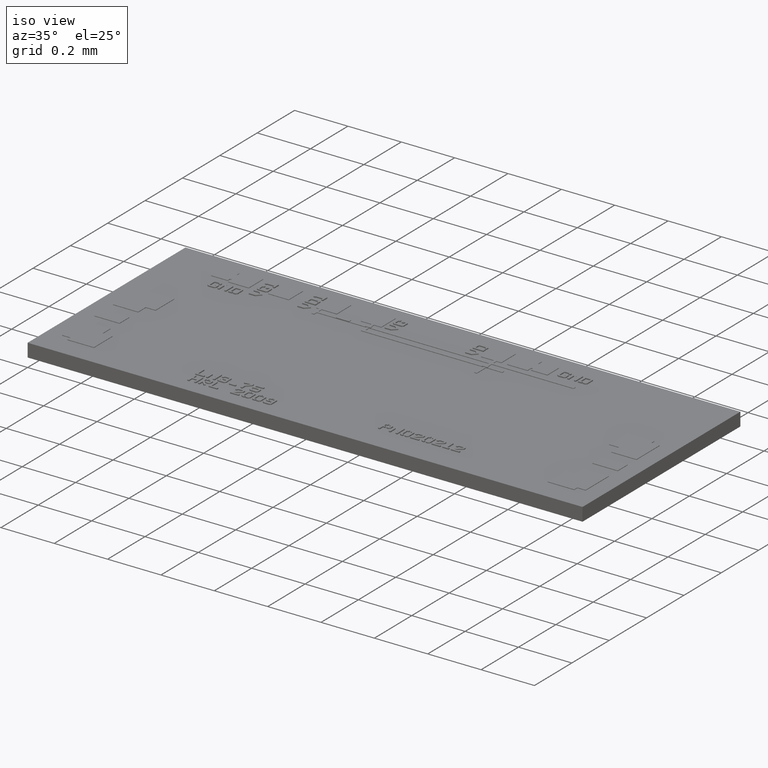
[diagram: clean part render]
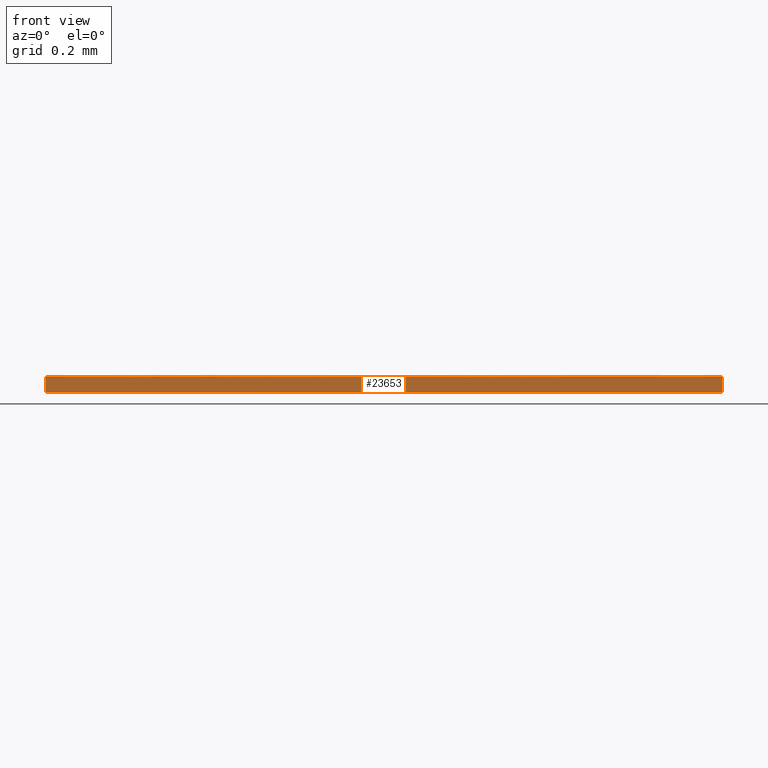
[diagram: tour spotlight — one face highlighted and labeled with its STEP entity id]
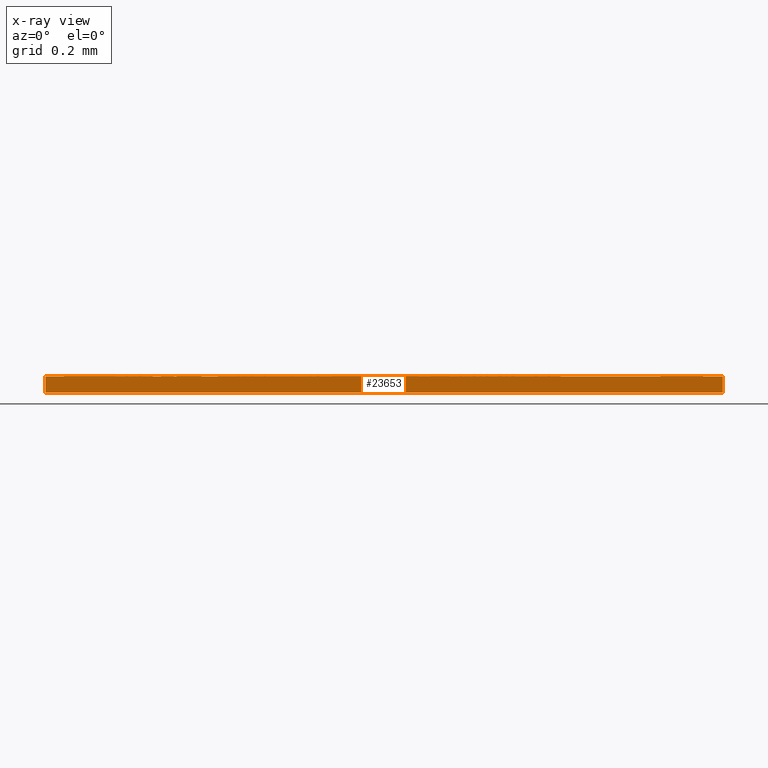
[diagram: x-ray of the same camera — body ghosted, this tour face saturated]
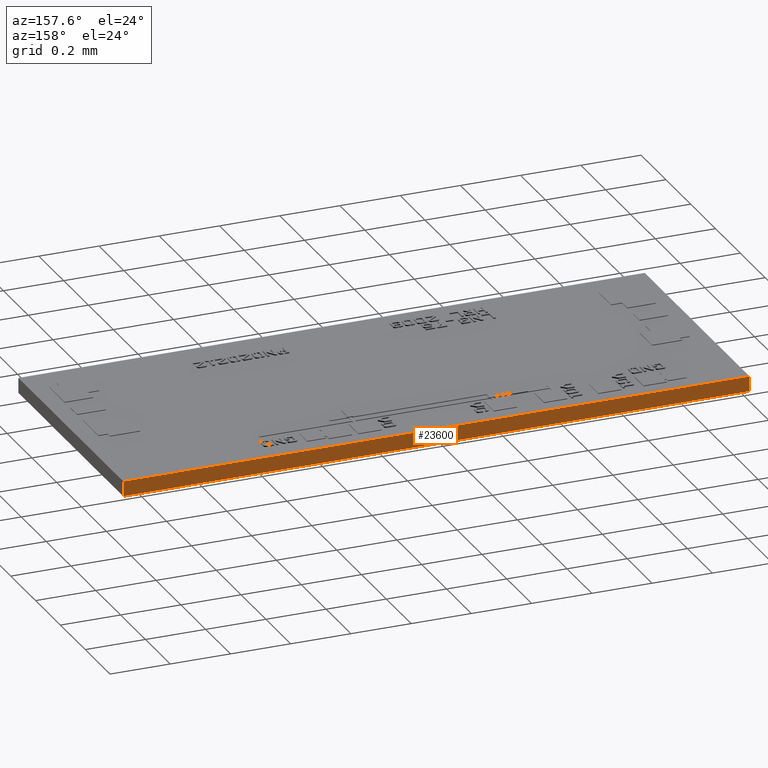
[diagram: tour spotlight — one face highlighted and labeled with its STEP entity id]
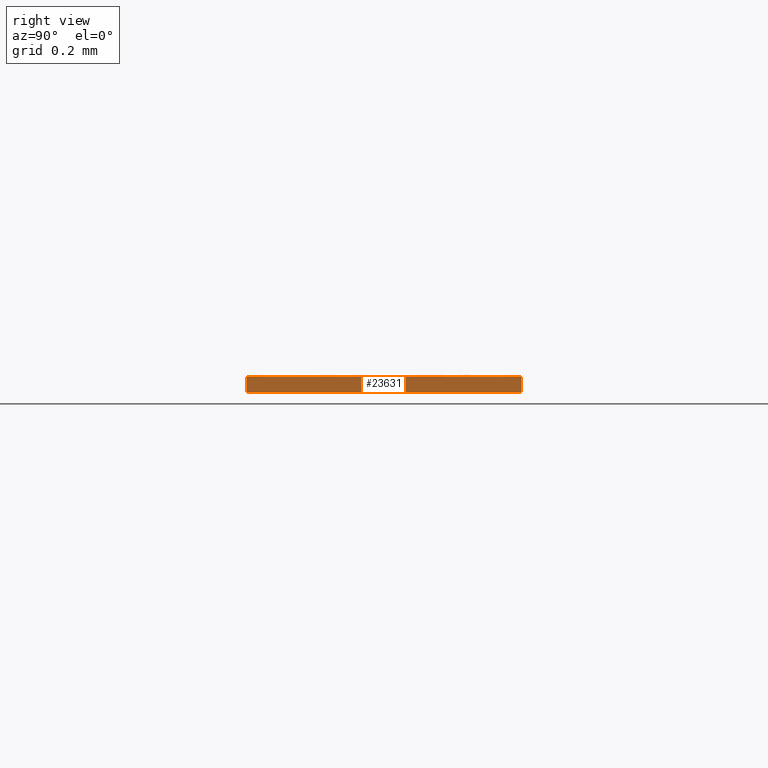
[diagram: tour spotlight — one face highlighted and labeled with its STEP entity id]
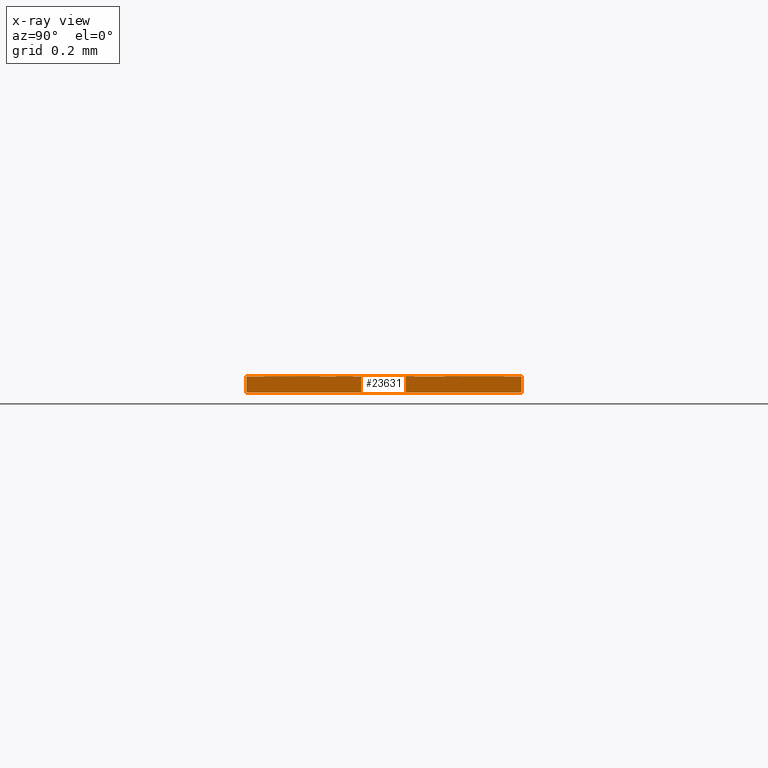
[diagram: x-ray of the same camera — body ghosted, this tour face saturated]
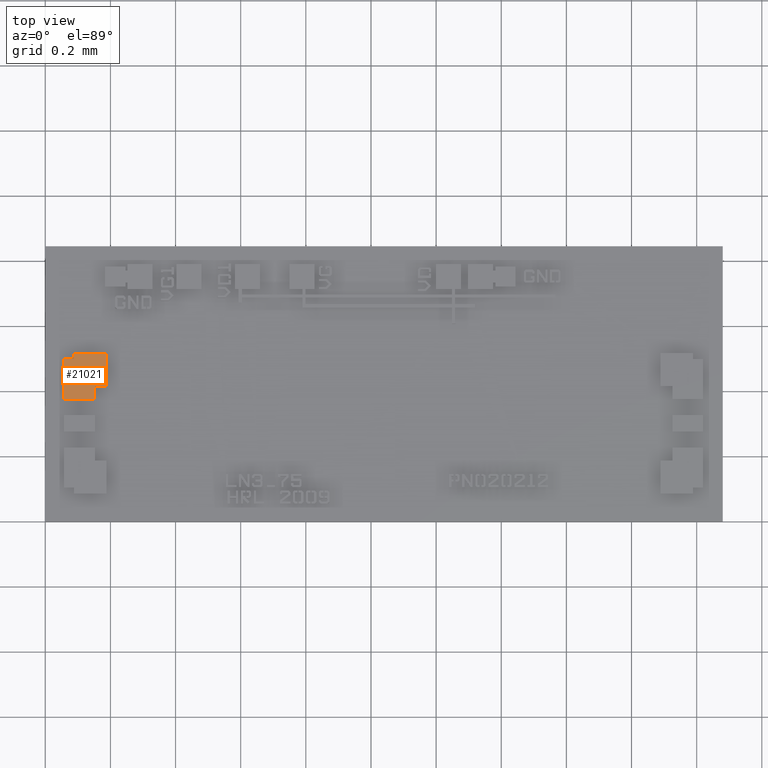
[diagram: tour spotlight — one face highlighted and labeled with its STEP entity id]
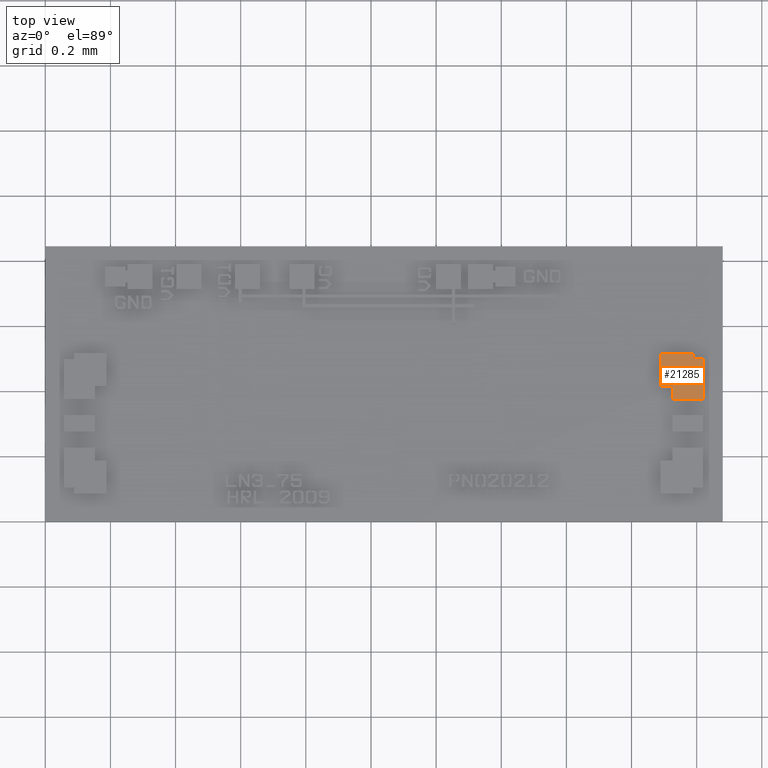
[diagram: tour spotlight — one face highlighted and labeled with its STEP entity id]
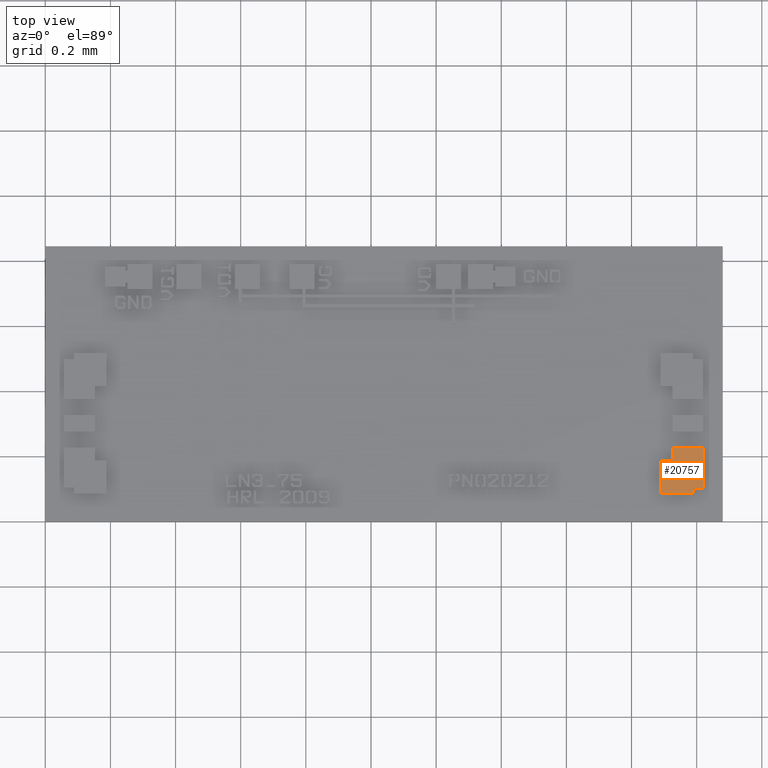
[diagram: tour spotlight — one face highlighted and labeled with its STEP entity id]
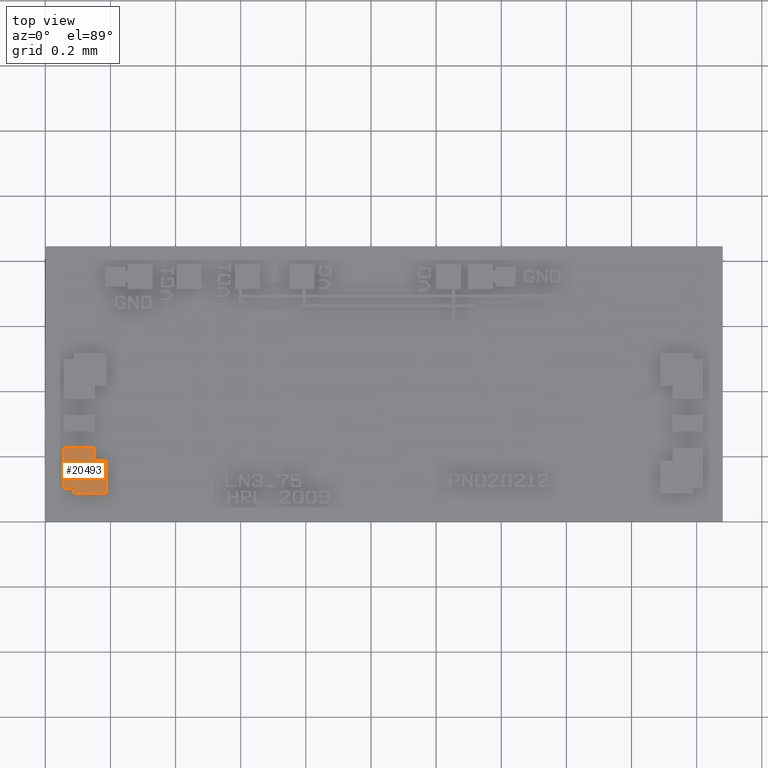
[diagram: tour spotlight — one face highlighted and labeled with its STEP entity id]
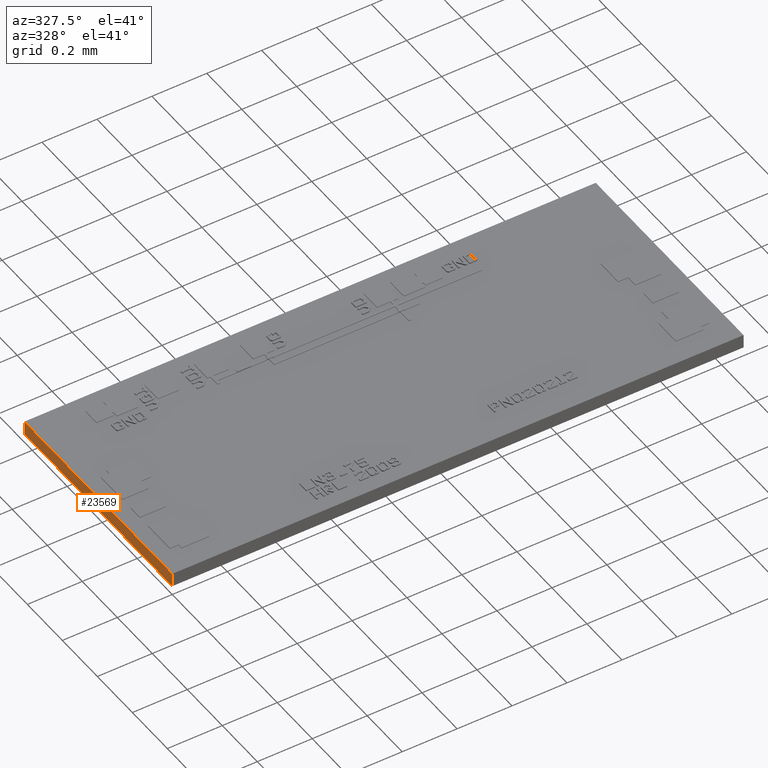
[diagram: tour spotlight — one face highlighted and labeled with its STEP entity id]
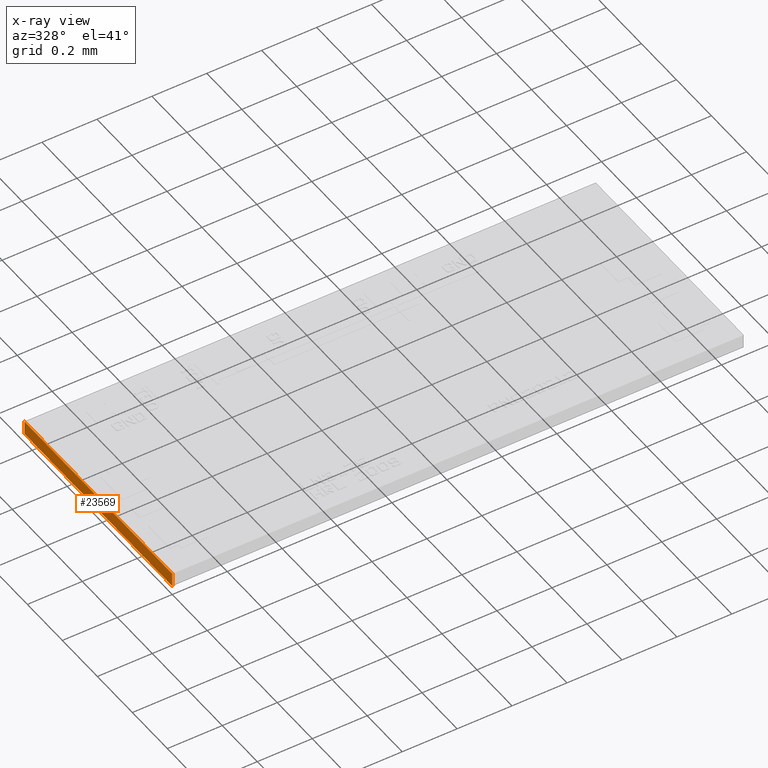
[diagram: x-ray of the same camera — body ghosted, this tour face saturated]
A machine part: a face-by-face anatomy tour. The part has 779 B-rep faces; the first image is the clean iso view, then the 8 largest visible faces are spotlighted one at a time (largest first), each with its STEP entity span.

Face 1 — front view, entity #23653. An x-ray twin of the same camera follows (body ghosted, this face saturated) — the face is partly hidden behind the body. In plain terms, the highlighted planar face has unit normal (0, -1, 0).
Definition (entity closure, byte-faithful):
#23535=CARTESIAN_POINT('',(0.0,0.0,0.001968503937008));
#23536=VERTEX_POINT('',#23535);
#23553=CARTESIAN_POINT('',(0.0,0.0,0.0));
#23554=VERTEX_POINT('',#23553);
#23561=CARTESIAN_POINT('',(0.0,0.0,0.0));
#23562=DIRECTION('',(0.0,0.0,1.0));
#23563=VECTOR('',#23562,0.001968503937008);
#23564=LINE('',#23561,#23563);
#23565=EDGE_CURVE('',#23554,#23536,#23564,.T.);
#23606=CARTESIAN_POINT('',(0.081889763779528,0.0,0.001968503937008));
#23607=VERTEX_POINT('',#23606);
#23614=CARTESIAN_POINT('',(0.081889763779528,0.0,0.0));
#23615=VERTEX_POINT('',#23614);
#23616=CARTESIAN_POINT('',(0.081889763779528,0.0,0.0));
#23617=DIRECTION('',(0.0,0.0,1.0));
#23618=VECTOR('',#23617,0.001968503937008);
#23619=LINE('',#23616,#23618);
#23620=EDGE_CURVE('',#23615,#23607,#23619,.T.);
#23632=CARTESIAN_POINT('',(0.081889763779528,0.0,0.0));
#23633=DIRECTION('',(0.0,-1.0,0.0));
#23634=DIRECTION('',(0.0,0.0,-1.0));
#23635=AXIS2_PLACEMENT_3D('',#23632,#23633,#23634);
#23636=PLANE('',#23635);
#23637=CARTESIAN_POINT('',(0.081889763779528,0.0,0.001968503937008));
#23638=DIRECTION('',(-1.0,0.0,0.0));
#23639=VECTOR('',#23638,0.081889763779528);
#23640=LINE('',#23637,#23639);
#23641=EDGE_CURVE('',#23607,#23536,#23640,.T.);
#23642=ORIENTED_EDGE('',*,*,#23641,.T.);
#23643=ORIENTED_EDGE('',*,*,#23565,.F.);
#23644=CARTESIAN_POINT('',(0.0,0.0,0.0));
#23645=DIRECTION('',(1.0,0.0,0.0));
#23646=VECTOR('',#23645,0.081889763779528);
#23647=LINE('',#23644,#23646);
#23648=EDGE_CURVE('',#23554,#23615,#23647,.T.);
#23649=ORIENTED_EDGE('',*,*,#23648,.T.);
#23650=ORIENTED_EDGE('',*,*,#23620,.T.);
#23651=EDGE_LOOP('',(#23642,#23643,#23649,#23650));
#23652=FACE_OUTER_BOUND('',#23651,.T.);
#23653=ADVANCED_FACE('',(#23652),#23636,.T.);

Face 2 — auxiliary view, entity #23600. In plain terms, the highlighted planar face has unit normal (0, 1, 0).
Definition (entity closure, byte-faithful):
#23537=CARTESIAN_POINT('',(-1.018530E-017,0.033267716535433,0.001968503937008));
#23538=VERTEX_POINT('',#23537);
#23545=CARTESIAN_POINT('',(-1.018530E-017,0.033267716535433,0.0));
#23546=VERTEX_POINT('',#23545);
#23547=CARTESIAN_POINT('',(-1.018530E-017,0.033267716535433,0.0));
#23548=DIRECTION('',(0.0,0.0,1.0));
#23549=VECTOR('',#23548,0.001968503937008);
#23550=LINE('',#23547,#23549);
#23551=EDGE_CURVE('',#23546,#23538,#23550,.T.);
#23570=CARTESIAN_POINT('',(-1.018530E-017,0.033267716535433,0.0));
#23571=DIRECTION('',(0.0,1.0,0.0));
#23572=DIRECTION('',(0.0,0.0,1.0));
#23573=AXIS2_PLACEMENT_3D('',#23570,#23571,#23572);
#23574=PLANE('',#23573);
#23575=CARTESIAN_POINT('',(0.081889763779528,0.033267716535433,0.001968503937008));
#23576=VERTEX_POINT('',#23575);
#23577=CARTESIAN_POINT('',(0.0,0.033267716535433,0.001968503937008));
#23578=DIRECTION('',(1.0,0.0,0.0));
#23579=VECTOR('',#23578,0.081889763779528);
#23580=LINE('',#23577,#23579);
#23581=EDGE_CURVE('',#23538,#23576,#23580,.T.);
#23582=ORIENTED_EDGE('',*,*,#23581,.T.);
#23583=CARTESIAN_POINT('',(0.081889763779528,0.033267716535433,0.0));
#23584=VERTEX_POINT('',#23583);
#23585=CARTESIAN_POINT('',(0.081889763779528,0.033267716535433,0.0));
#23586=DIRECTION('',(0.0,0.0,1.0));
#23587=VECTOR('',#23586,0.001968503937008);
#23588=LINE('',#23585,#23587);
#23589=EDGE_CURVE('',#23584,#23576,#23588,.T.);
#23590=ORIENTED_EDGE('',*,*,#23589,.F.);
#23591=CARTESIAN_POINT('',(0.081889763779528,0.033267716535433,0.0));
#23592=DIRECTION('',(-1.0,0.0,0.0));
#23593=VECTOR('',#23592,0.081889763779528);
#23594=LINE('',#23591,#23593);
#23595=EDGE_CURVE('',#23584,#23546,#23594,.T.);
#23596=ORIENTED_EDGE('',*,*,#23595,.T.);
#23597=ORIENTED_EDGE('',*,*,#23551,.T.);
#23598=EDGE_LOOP('',(#23582,#23590,#23596,#23597));
#23599=FACE_OUTER_BOUND('',#23598,.T.);
#23600=ADVANCED_FACE('',(#23599),#23574,.T.);

Face 3 — right view, entity #23631. An x-ray twin of the same camera follows (body ghosted, this face saturated) — the face is partly hidden behind the body. In plain terms, the highlighted planar face has unit normal (1, 0, 0).
Definition (entity closure, byte-faithful):
#23575=CARTESIAN_POINT('',(0.081889763779528,0.033267716535433,0.001968503937008));
#23576=VERTEX_POINT('',#23575);
#23583=CARTESIAN_POINT('',(0.081889763779528,0.033267716535433,0.0));
#23584=VERTEX_POINT('',#23583);
#23585=CARTESIAN_POINT('',(0.081889763779528,0.033267716535433,0.0));
#23586=DIRECTION('',(0.0,0.0,1.0));
#23587=VECTOR('',#23586,0.001968503937008);
#23588=LINE('',#23585,#23587);
#23589=EDGE_CURVE('',#23584,#23576,#23588,.T.);
#23601=CARTESIAN_POINT('',(0.081889763779528,0.033267716535433,0.0));
#23602=DIRECTION('',(1.0,0.0,0.0));
#23603=DIRECTION('',(0.0,0.0,-1.0));
#23604=AXIS2_PLACEMENT_3D('',#23601,#23602,#23603);
#23605=PLANE('',#23604);
#23606=CARTESIAN_POINT('',(0.081889763779528,0.0,0.001968503937008));
#23607=VERTEX_POINT('',#23606);
#23608=CARTESIAN_POINT('',(0.081889763779528,0.033267716535433,0.001968503937008));
#23609=DIRECTION('',(0.0,-1.0,0.0));
#23610=VECTOR('',#23609,0.033267716535433);
#23611=LINE('',#23608,#23610);
#23612=EDGE_CURVE('',#23576,#23607,#23611,.T.);
#23613=ORIENTED_EDGE('',*,*,#23612,.T.);
#23614=CARTESIAN_POINT('',(0.081889763779528,0.0,0.0));
#23615=VERTEX_POINT('',#23614);
#23616=CARTESIAN_POINT('',(0.081889763779528,0.0,0.0));
#23617=DIRECTION('',(0.0,0.0,1.0));
#23618=VECTOR('',#23617,0.001968503937008);
#23619=LINE('',#23616,#23618);
#23620=EDGE_CURVE('',#23615,#23607,#23619,.T.);
#23621=ORIENTED_EDGE('',*,*,#23620,.F.);
#23622=CARTESIAN_POINT('',(0.081889763779528,0.0,0.0));
#23623=DIRECTION('',(0.0,1.0,0.0));
#23624=VECTOR('',#23623,0.033267716535433);
#23625=LINE('',#23622,#23624);
#23626=EDGE_CURVE('',#23615,#23584,#23625,.T.);
#23627=ORIENTED_EDGE('',*,*,#23626,.T.);
#23628=ORIENTED_EDGE('',*,*,#23589,.T.);
#23629=EDGE_LOOP('',(#23613,#23621,#23627,#23628));
#23630=FACE_OUTER_BOUND('',#23629,.T.);
#23631=ADVANCED_FACE('',(#23630),#23605,.T.);

Face 4 — top view, entity #21021. In plain terms, the highlighted planar face has unit normal (0, 0, 1).
Definition (entity closure, byte-faithful):
#20763=CARTESIAN_POINT('',(0.003476377952756,0.020314960629921,0.002047244094488));
#20764=VERTEX_POINT('',#20763);
#20765=CARTESIAN_POINT('',(0.007413385826772,0.020314960629921,0.002047244094488));
#20766=VERTEX_POINT('',#20765);
#20767=CARTESIAN_POINT('',(0.003476377952756,0.020314960629921,0.002047244094488));
#20768=DIRECTION('',(1.0,0.0,0.0));
#20769=VECTOR('',#20768,0.003937007874016);
#20770=LINE('',#20767,#20769);
#20771=EDGE_CURVE('',#20764,#20766,#20770,.T.);
#20803=CARTESIAN_POINT('',(0.007413385826772,0.016377952755906,0.002047244094488));
#20804=VERTEX_POINT('',#20803);
#20805=CARTESIAN_POINT('',(0.007413385826772,0.020314960629921,0.002047244094488));
#20806=DIRECTION('',(0.0,-1.0,0.0));
#20807=VECTOR('',#20806,0.003937007874016);
#20808=LINE('',#20805,#20807);
#20809=EDGE_CURVE('',#20766,#20804,#20808,.T.);
#20834=CARTESIAN_POINT('',(0.005976377952756,0.016377952755906,0.002047244094488));
#20835=VERTEX_POINT('',#20834);
#20836=CARTESIAN_POINT('',(0.007413385826772,0.016377952755906,0.002047244094488));
#20837=DIRECTION('',(-1.0,0.0,0.0));
#20838=VECTOR('',#20837,0.001437007874016);
#20839=LINE('',#20836,#20838);
#20840=EDGE_CURVE('',#20804,#20835,#20839,.T.);
#20865=CARTESIAN_POINT('',(0.005976377952756,0.014763779527559,0.002047244094488));
#20866=VERTEX_POINT('',#20865);
#20867=CARTESIAN_POINT('',(0.005976377952756,0.016377952755906,0.002047244094488));
#20868=DIRECTION('',(0.0,-1.0,0.0));
#20869=VECTOR('',#20868,0.001614173228346);
#20870=LINE('',#20867,#20869);
#20871=EDGE_CURVE('',#20835,#20866,#20870,.T.);
#20896=CARTESIAN_POINT('',(0.002255905511811,0.014763779527559,0.002047244094488));
#20897=VERTEX_POINT('',#20896);
#20898=CARTESIAN_POINT('',(0.005976377952756,0.014763779527559,0.002047244094488));
#20899=DIRECTION('',(-1.0,0.0,0.0));
#20900=VECTOR('',#20899,0.003720472440945);
#20901=LINE('',#20898,#20900);
#20902=EDGE_CURVE('',#20866,#20897,#20901,.T.);
#20927=CARTESIAN_POINT('',(0.002255905511811,0.019645669291339,0.002047244094488));
#20928=VERTEX_POINT('',#20927);
#20929=CARTESIAN_POINT('',(0.002255905511811,0.014763779527559,0.002047244094488));
#20930=DIRECTION('',(0.0,1.0,0.0));
#20931=VECTOR('',#20930,0.004881889763780);
#20932=LINE('',#20929,#20931);
#20933=EDGE_CURVE('',#20897,#20928,#20932,.T.);
#20958=CARTESIAN_POINT('',(0.003476377952756,0.019645669291339,0.002047244094488));
#20959=VERTEX_POINT('',#20958);
#20960=CARTESIAN_POINT('',(0.002255905511811,0.019645669291339,0.002047244094488));
#20961=DIRECTION('',(1.0,0.0,0.0));
#20962=VECTOR('',#20961,0.001220472440945);
#20963=LINE('',#20960,#20962);
#20964=EDGE_CURVE('',#20928,#20959,#20963,.T.);
#20989=CARTESIAN_POINT('',(0.003476377952756,0.019645669291339,0.002047244094488));
#20990=DIRECTION('',(0.0,1.0,0.0));
#20991=VECTOR('',#20990,0.000669291338583);
#20992=LINE('',#20989,#20991);
#20993=EDGE_CURVE('',#20959,#20764,#20992,.T.);
#21006=CARTESIAN_POINT('',(0.004764481530801,0.017609534217230,0.002047244094488));
#21007=DIRECTION('',(0.0,0.0,1.0));
#21008=DIRECTION('',(1.0,0.0,0.0));
#21009=AXIS2_PLACEMENT_3D('',#21006,#21007,#21008);
#21010=PLANE('',#21009);
#21011=ORIENTED_EDGE('',*,*,#20771,.F.);
#21012=ORIENTED_EDGE('',*,*,#20993,.F.);
#21013=ORIENTED_EDGE('',*,*,#20964,.F.);
#21014=ORIENTED_EDGE('',*,*,#20933,.F.);
#21015=ORIENTED_EDGE('',*,*,#20902,.F.);
#21016=ORIENTED_EDGE('',*,*,#20871,.F.);
#21017=ORIENTED_EDGE('',*,*,#20840,.F.);
#21018=ORIENTED_EDGE('',*,*,#20809,.F.);
#21019=EDGE_LOOP('',(#21011,#21012,#21013,#21014,#21015,#21016,#21017,#21018));
#21020=FACE_OUTER_BOUND('',#21019,.T.);
#21021=ADVANCED_FACE('',(#21020),#21010,.T.);

Face 5 — top view, entity #21285. In plain terms, the highlighted planar face has unit normal (0, 0, 1).
Definition (entity closure, byte-faithful):
#21027=CARTESIAN_POINT('',(0.078287401574803,0.019645669291339,0.002047244094488));
#21028=VERTEX_POINT('',#21027);
#21029=CARTESIAN_POINT('',(0.079507874015748,0.019645669291339,0.002047244094488));
#21030=VERTEX_POINT('',#21029);
#21031=CARTESIAN_POINT('',(0.078287401574803,0.019645669291339,0.002047244094488));
#21032=DIRECTION('',(1.0,0.0,0.0));
#21033=VECTOR('',#21032,0.001220472440945);
#21034=LINE('',#21031,#21033);
#21035=EDGE_CURVE('',#21028,#21030,#21034,.T.);
#21067=CARTESIAN_POINT('',(0.079507874015748,0.014763779527559,0.002047244094488));
#21068=VERTEX_POINT('',#21067);
#21069=CARTESIAN_POINT('',(0.079507874015748,0.019645669291339,0.002047244094488));
#21070=DIRECTION('',(0.0,-1.0,0.0));
#21071=VECTOR('',#21070,0.004881889763780);
#21072=LINE('',#21069,#21071);
#21073=EDGE_CURVE('',#21030,#21068,#21072,.T.);
#21098=CARTESIAN_POINT('',(0.075787401574803,0.014763779527559,0.002047244094488));
#21099=VERTEX_POINT('',#21098);
#21100=CARTESIAN_POINT('',(0.079507874015748,0.014763779527559,0.002047244094488));
#21101=DIRECTION('',(-1.0,0.0,0.0));
#21102=VECTOR('',#21101,0.003720472440945);
#21103=LINE('',#21100,#21102);
#21104=EDGE_CURVE('',#21068,#21099,#21103,.T.);
#21129=CARTESIAN_POINT('',(0.075787401574803,0.016377952755906,0.002047244094488));
#21130=VERTEX_POINT('',#21129);
#21131=CARTESIAN_POINT('',(0.075787401574803,0.014763779527559,0.002047244094488));
#21132=DIRECTION('',(0.0,1.0,0.0));
#21133=VECTOR('',#21132,0.001614173228346);
#21134=LINE('',#21131,#21133);
#21135=EDGE_CURVE('',#21099,#21130,#21134,.T.);
#21160=CARTESIAN_POINT('',(0.074350393700787,0.016377952755906,0.002047244094488));
#21161=VERTEX_POINT('',#21160);
#21162=CARTESIAN_POINT('',(0.075787401574803,0.016377952755906,0.002047244094488));
#21163=DIRECTION('',(-1.0,0.0,0.0));
#21164=VECTOR('',#21163,0.001437007874016);
#21165=LINE('',#21162,#21164);
#21166=EDGE_CURVE('',#21130,#21161,#21165,.T.);
#21191=CARTESIAN_POINT('',(0.074350393700787,0.020314960629921,0.002047244094488));
#21192=VERTEX_POINT('',#21191);
#21193=CARTESIAN_POINT('',(0.074350393700787,0.016377952755906,0.002047244094488));
#21194=DIRECTION('',(0.0,1.0,0.0));
#21195=VECTOR('',#21194,0.003937007874016);
#21196=LINE('',#21193,#21195);
#21197=EDGE_CURVE('',#21161,#21192,#21196,.T.);
#21222=CARTESIAN_POINT('',(0.078287401574803,0.020314960629921,0.002047244094488));
#21223=VERTEX_POINT('',#21222);
#21224=CARTESIAN_POINT('',(0.074350393700787,0.020314960629921,0.002047244094488));
#21225=DIRECTION('',(1.0,0.0,0.0));
#21226=VECTOR('',#21225,0.003937007874016);
#21227=LINE('',#21224,#21226);
#21228=EDGE_CURVE('',#21192,#21223,#21227,.T.);
#21253=CARTESIAN_POINT('',(0.078287401574803,0.020314960629921,0.002047244094488));
#21254=DIRECTION('',(0.0,-1.0,0.0));
#21255=VECTOR('',#21254,0.000669291338583);
#21256=LINE('',#21253,#21255);
#21257=EDGE_CURVE('',#21223,#21028,#21256,.T.);
#21270=CARTESIAN_POINT('',(0.076999297996758,0.017609534217230,0.002047244094488));
#21271=DIRECTION('',(0.0,0.0,1.0));
#21272=DIRECTION('',(1.0,0.0,0.0));
#21273=AXIS2_PLACEMENT_3D('',#21270,#21271,#21272);
#21274=PLANE('',#21273);
#21275=ORIENTED_EDGE('',*,*,#21035,.F.);
#21276=ORIENTED_EDGE('',*,*,#21257,.F.);
#21277=ORIENTED_EDGE('',*,*,#21228,.F.);
#21278=ORIENTED_EDGE('',*,*,#21197,.F.);
#21279=ORIENTED_EDGE('',*,*,#21166,.F.);
#21280=ORIENTED_EDGE('',*,*,#21135,.F.);
#21281=ORIENTED_EDGE('',*,*,#21104,.F.);
#21282=ORIENTED_EDGE('',*,*,#21073,.F.);
#21283=EDGE_LOOP('',(#21275,#21276,#21277,#21278,#21279,#21280,#21281,#21282));
#21284=FACE_OUTER_BOUND('',#21283,.T.);
#21285=ADVANCED_FACE('',(#21284),#21274,.T.);

Face 6 — top view, entity #20757. In plain terms, the highlighted planar face has unit normal (0, 0, 1).
Definition (entity closure, byte-faithful):
#20499=CARTESIAN_POINT('',(0.078287401574803,0.003385826771654,0.002047244094488));
#20500=VERTEX_POINT('',#20499);
#20501=CARTESIAN_POINT('',(0.074350393700787,0.003385826771654,0.002047244094488));
#20502=VERTEX_POINT('',#20501);
#20503=CARTESIAN_POINT('',(0.078287401574803,0.003385826771654,0.002047244094488));
#20504=DIRECTION('',(-1.0,0.0,0.0));
#20505=VECTOR('',#20504,0.003937007874016);
#20506=LINE('',#20503,#20505);
#20507=EDGE_CURVE('',#20500,#20502,#20506,.T.);
#20539=CARTESIAN_POINT('',(0.074350393700787,0.007322834645669,0.002047244094488));
#20540=VERTEX_POINT('',#20539);
#20541=CARTESIAN_POINT('',(0.074350393700787,0.003385826771654,0.002047244094488));
#20542=DIRECTION('',(0.0,1.0,0.0));
#20543=VECTOR('',#20542,0.003937007874016);
#20544=LINE('',#20541,#20543);
#20545=EDGE_CURVE('',#20502,#20540,#20544,.T.);
#20570=CARTESIAN_POINT('',(0.075787401574803,0.007322834645669,0.002047244094488));
#20571=VERTEX_POINT('',#20570);
#20572=CARTESIAN_POINT('',(0.074350393700787,0.007322834645669,0.002047244094488));
#20573=DIRECTION('',(1.0,0.0,0.0));
#20574=VECTOR('',#20573,0.001437007874016);
#20575=LINE('',#20572,#20574);
#20576=EDGE_CURVE('',#20540,#20571,#20575,.T.);
#20601=CARTESIAN_POINT('',(0.075787401574803,0.008937007874016,0.002047244094488));
#20602=VERTEX_POINT('',#20601);
#20603=CARTESIAN_POINT('',(0.075787401574803,0.007322834645669,0.002047244094488));
#20604=DIRECTION('',(0.0,1.0,0.0));
#20605=VECTOR('',#20604,0.001614173228346);
#20606=LINE('',#20603,#20605);
#20607=EDGE_CURVE('',#20571,#20602,#20606,.T.);
#20632=CARTESIAN_POINT('',(0.079507874015748,0.008937007874016,0.002047244094488));
#20633=VERTEX_POINT('',#20632);
#20634=CARTESIAN_POINT('',(0.075787401574803,0.008937007874016,0.002047244094488));
#20635=DIRECTION('',(1.0,0.0,0.0));
#20636=VECTOR('',#20635,0.003720472440945);
#20637=LINE('',#20634,#20636);
#20638=EDGE_CURVE('',#20602,#20633,#20637,.T.);
#20663=CARTESIAN_POINT('',(0.079507874015748,0.004055118110236,0.002047244094488));
#20664=VERTEX_POINT('',#20663);
#20665=CARTESIAN_POINT('',(0.079507874015748,0.008937007874016,0.002047244094488));
#20666=DIRECTION('',(0.0,-1.0,0.0));
#20667=VECTOR('',#20666,0.004881889763780);
#20668=LINE('',#20665,#20667);
#20669=EDGE_CURVE('',#20633,#20664,#20668,.T.);
#20694=CARTESIAN_POINT('',(0.078287401574803,0.004055118110236,0.002047244094488));
#20695=VERTEX_POINT('',#20694);
#20696=CARTESIAN_POINT('',(0.079507874015748,0.004055118110236,0.002047244094488));
#20697=DIRECTION('',(-1.0,0.0,0.0));
#20698=VECTOR('',#20697,0.001220472440945);
#20699=LINE('',#20696,#20698);
#20700=EDGE_CURVE('',#20664,#20695,#20699,.T.);
#20725=CARTESIAN_POINT('',(0.078287401574803,0.004055118110236,0.002047244094488));
#20726=DIRECTION('',(0.0,-1.0,0.0));
#20727=VECTOR('',#20726,0.000669291338583);
#20728=LINE('',#20725,#20727);
#20729=EDGE_CURVE('',#20695,#20500,#20728,.T.);
#20742=CARTESIAN_POINT('',(0.076999297996758,0.006091253184345,0.002047244094488));
#20743=DIRECTION('',(0.0,0.0,1.0));
#20744=DIRECTION('',(1.0,0.0,0.0));
#20745=AXIS2_PLACEMENT_3D('',#20742,#20743,#20744);
#20746=PLANE('',#20745);
#20747=ORIENTED_EDGE('',*,*,#20507,.F.);
#20748=ORIENTED_EDGE('',*,*,#20729,.F.);
#20749=ORIENTED_EDGE('',*,*,#20700,.F.);
#20750=ORIENTED_EDGE('',*,*,#20669,.F.);
#20751=ORIENTED_EDGE('',*,*,#20638,.F.);
#20752=ORIENTED_EDGE('',*,*,#20607,.F.);
#20753=ORIENTED_EDGE('',*,*,#20576,.F.);
#20754=ORIENTED_EDGE('',*,*,#20545,.F.);
#20755=EDGE_LOOP('',(#20747,#20748,#20749,#20750,#20751,#20752,#20753,#20754));
#20756=FACE_OUTER_BOUND('',#20755,.T.);
#20757=ADVANCED_FACE('',(#20756),#20746,.T.);

Face 7 — top view, entity #20493. In plain terms, the highlighted planar face has unit normal (0, 0, 1).
Definition (entity closure, byte-faithful):
#20235=CARTESIAN_POINT('',(0.003476377952756,0.004055118110236,0.002047244094488));
#20236=VERTEX_POINT('',#20235);
#20237=CARTESIAN_POINT('',(0.002255905511811,0.004055118110236,0.002047244094488));
#20238=VERTEX_POINT('',#20237);
#20239=CARTESIAN_POINT('',(0.003476377952756,0.004055118110236,0.002047244094488));
#20240=DIRECTION('',(-1.0,0.0,0.0));
#20241=VECTOR('',#20240,0.001220472440945);
#20242=LINE('',#20239,#20241);
#20243=EDGE_CURVE('',#20236,#20238,#20242,.T.);
#20275=CARTESIAN_POINT('',(0.002255905511811,0.008937007874016,0.002047244094488));
#20276=VERTEX_POINT('',#20275);
#20277=CARTESIAN_POINT('',(0.002255905511811,0.004055118110236,0.002047244094488));
#20278=DIRECTION('',(0.0,1.0,0.0));
#20279=VECTOR('',#20278,0.004881889763780);
#20280=LINE('',#20277,#20279);
#20281=EDGE_CURVE('',#20238,#20276,#20280,.T.);
#20306=CARTESIAN_POINT('',(0.005976377952756,0.008937007874016,0.002047244094488));
#20307=VERTEX_POINT('',#20306);
#20308=CARTESIAN_POINT('',(0.002255905511811,0.008937007874016,0.002047244094488));
#20309=DIRECTION('',(1.0,0.0,0.0));
#20310=VECTOR('',#20309,0.003720472440945);
#20311=LINE('',#20308,#20310);
#20312=EDGE_CURVE('',#20276,#20307,#20311,.T.);
#20337=CARTESIAN_POINT('',(0.005976377952756,0.007322834645669,0.002047244094488));
#20338=VERTEX_POINT('',#20337);
#20339=CARTESIAN_POINT('',(0.005976377952756,0.008937007874016,0.002047244094488));
#20340=DIRECTION('',(0.0,-1.0,0.0));
#20341=VECTOR('',#20340,0.001614173228346);
#20342=LINE('',#20339,#20341);
#20343=EDGE_CURVE('',#20307,#20338,#20342,.T.);
#20368=CARTESIAN_POINT('',(0.007413385826772,0.007322834645669,0.002047244094488));
#20369=VERTEX_POINT('',#20368);
#20370=CARTESIAN_POINT('',(0.005976377952756,0.007322834645669,0.002047244094488));
#20371=DIRECTION('',(1.0,0.0,0.0));
#20372=VECTOR('',#20371,0.001437007874016);
#20373=LINE('',#20370,#20372);
#20374=EDGE_CURVE('',#20338,#20369,#20373,.T.);
#20399=CARTESIAN_POINT('',(0.007413385826772,0.003385826771654,0.002047244094488));
#20400=VERTEX_POINT('',#20399);
#20401=CARTESIAN_POINT('',(0.007413385826772,0.007322834645669,0.002047244094488));
#20402=DIRECTION('',(0.0,-1.0,0.0));
#20403=VECTOR('',#20402,0.003937007874016);
#20404=LINE('',#20401,#20403);
#20405=EDGE_CURVE('',#20369,#20400,#20404,.T.);
#20430=CARTESIAN_POINT('',(0.003476377952756,0.003385826771654,0.002047244094488));
#20431=VERTEX_POINT('',#20430);
#20432=CARTESIAN_POINT('',(0.007413385826772,0.003385826771654,0.002047244094488));
#20433=DIRECTION('',(-1.0,0.0,0.0));
#20434=VECTOR('',#20433,0.003937007874016);
#20435=LINE('',#20432,#20434);
#20436=EDGE_CURVE('',#20400,#20431,#20435,.T.);
#20461=CARTESIAN_POINT('',(0.003476377952756,0.003385826771654,0.002047244094488));
#20462=DIRECTION('',(0.0,1.0,0.0));
#20463=VECTOR('',#20462,0.000669291338583);
#20464=LINE('',#20461,#20463);
#20465=EDGE_CURVE('',#20431,#20236,#20464,.T.);
#20478=CARTESIAN_POINT('',(0.004764481530801,0.006091253184345,0.002047244094488));
#20479=DIRECTION('',(0.0,0.0,1.0));
#20480=DIRECTION('',(1.0,0.0,0.0));
#20481=AXIS2_PLACEMENT_3D('',#20478,#20479,#20480);
#20482=PLANE('',#20481);
#20483=ORIENTED_EDGE('',*,*,#20243,.F.);
#20484=ORIENTED_EDGE('',*,*,#20465,.F.);
#20485=ORIENTED_EDGE('',*,*,#20436,.F.);
#20486=ORIENTED_EDGE('',*,*,#20405,.F.);
#20487=ORIENTED_EDGE('',*,*,#20374,.F.);
#20488=ORIENTED_EDGE('',*,*,#20343,.F.);
#20489=ORIENTED_EDGE('',*,*,#20312,.F.);
#20490=ORIENTED_EDGE('',*,*,#20281,.F.);
#20491=EDGE_LOOP('',(#20483,#20484,#20485,#20486,#20487,#20488,#20489,#20490));
#20492=FACE_OUTER_BOUND('',#20491,.T.);
#20493=ADVANCED_FACE('',(#20492),#20482,.T.);

Face 8 — auxiliary view, entity #23569. An x-ray twin of the same camera follows (body ghosted, this face saturated) — the face is partly hidden behind the body. In plain terms, the highlighted planar face has unit normal (-1, 0, 0).
Definition (entity closure, byte-faithful):
#23530=CARTESIAN_POINT('',(0.0,0.0,0.0));
#23531=DIRECTION('',(-1.0,0.0,0.0));
#23532=DIRECTION('',(0.0,0.0,1.0));
#23533=AXIS2_PLACEMENT_3D('',#23530,#23531,#23532);
#23534=PLANE('',#23533);
#23535=CARTESIAN_POINT('',(0.0,0.0,0.001968503937008));
#23536=VERTEX_POINT('',#23535);
#23537=CARTESIAN_POINT('',(-1.018530E-017,0.033267716535433,0.001968503937008));
#23538=VERTEX_POINT('',#23537);
#23539=CARTESIAN_POINT('',(3.081488E-033,0.0,0.001968503937008));
#23540=DIRECTION('',(0.0,1.0,0.0));
#23541=VECTOR('',#23540,0.033267716535433);
#23542=LINE('',#23539,#23541);
#23543=EDGE_CURVE('',#23536,#23538,#23542,.T.);
#23544=ORIENTED_EDGE('',*,*,#23543,.T.);
#23545=CARTESIAN_POINT('',(-1.018530E-017,0.033267716535433,0.0));
#23546=VERTEX_POINT('',#23545);
#23547=CARTESIAN_POINT('',(-1.018530E-017,0.033267716535433,0.0));
#23548=DIRECTION('',(0.0,0.0,1.0));
#23549=VECTOR('',#23548,0.001968503937008);
#23550=LINE('',#23547,#23549);
#23551=EDGE_CURVE('',#23546,#23538,#23550,.T.);
#23552=ORIENTED_EDGE('',*,*,#23551,.F.);
#23553=CARTESIAN_POINT('',(0.0,0.0,0.0));
#23554=VERTEX_POINT('',#23553);
#23555=CARTESIAN_POINT('',(-1.018530E-017,0.033267716535433,0.0));
#23556=DIRECTION('',(0.0,-1.0,0.0));
#23557=VECTOR('',#23556,0.033267716535433);
#23558=LINE('',#23555,#23557);
#23559=EDGE_CURVE('',#23546,#23554,#23558,.T.);
#23560=ORIENTED_EDGE('',*,*,#23559,.T.);
#23561=CARTESIAN_POINT('',(0.0,0.0,0.0));
#23562=DIRECTION('',(0.0,0.0,1.0));
#23563=VECTOR('',#23562,0.001968503937008);
#23564=LINE('',#23561,#23563);
#23565=EDGE_CURVE('',#23554,#23536,#23564,.T.);
#23566=ORIENTED_EDGE('',*,*,#23565,.T.);
#23567=EDGE_LOOP('',(#23544,#23552,#23560,#23566));
#23568=FACE_OUTER_BOUND('',#23567,.T.);
#23569=ADVANCED_FACE('',(#23568),#23534,.T.);